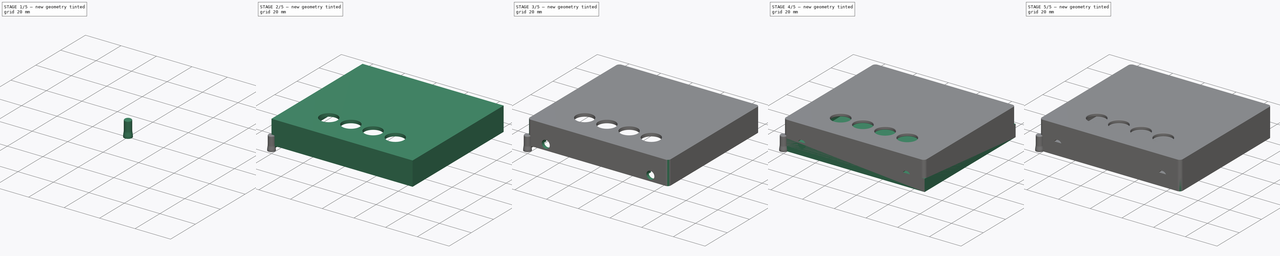
[diagram: build sequence overview — one tinted view per stage of 5, left to right]
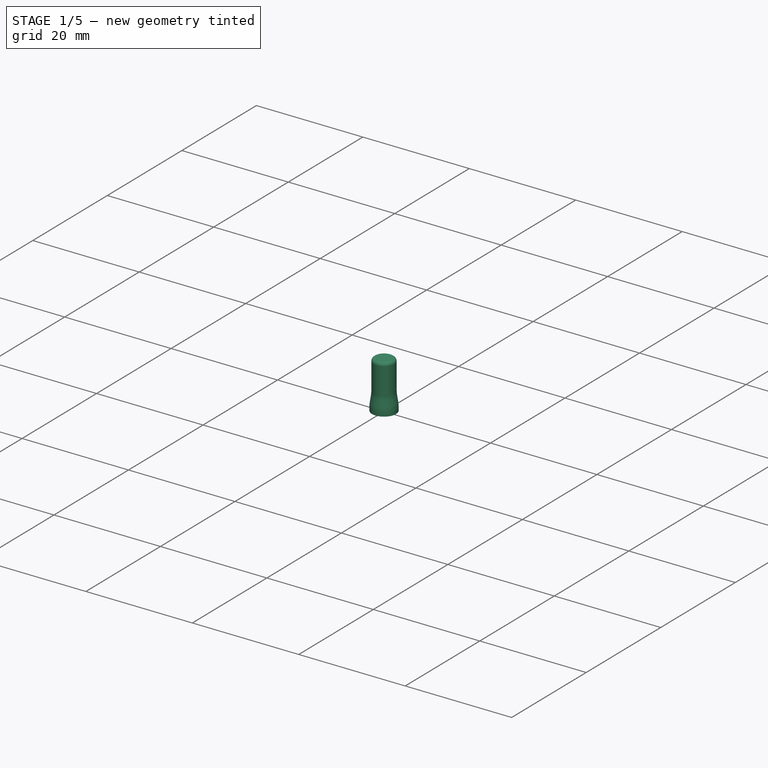
[diagram: stage 1 of 5 — iso view after this stage's code; geometry added in this stage tinted green]
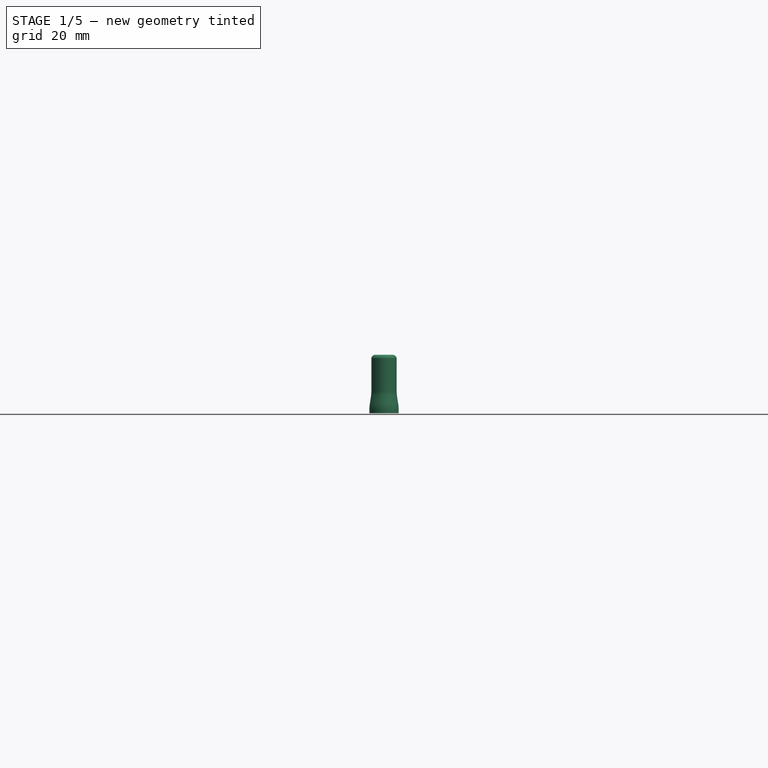
[diagram: stage 1 of 5 — front view after this stage's code; geometry added in this stage tinted green]
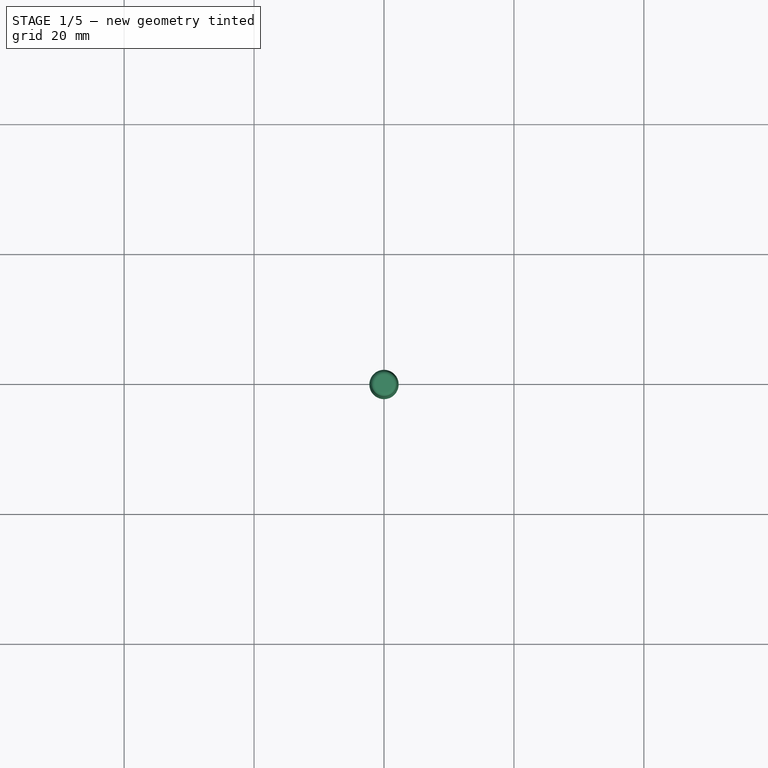
[diagram: stage 1 of 5 — top view after this stage's code; geometry added in this stage tinted green]
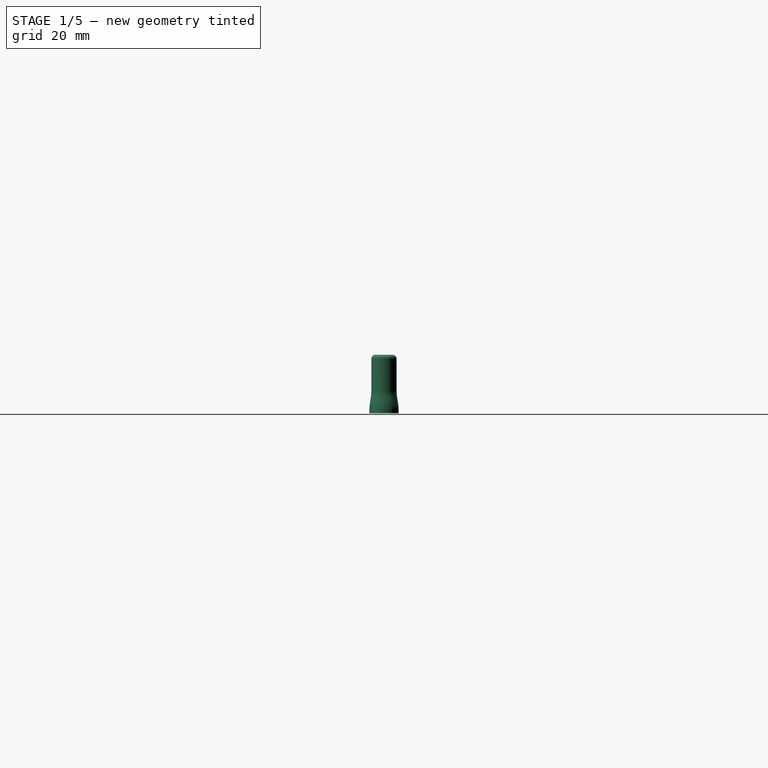
[diagram: stage 1 of 5 — right view after this stage's code; geometry added in this stage tinted green]
FCSTD DOCUMENT  (FreeCAD 1.0R39319 (Git))
Label: C1094
License: All rights reserved
LicenseURL: https://en.wikipedia.org/wiki/All_rights_reserved
objects: Sketcher::SketchObject×16, PartDesign::Pad×11, PartDesign::Fillet×5, PartDesign::Pocket×5, PartDesign::Body×4, PartDesign::Chamfer×3, PartDesign::AdditiveLoft×1
note: 111 computed .brp shape members not serialized (recipe doc carries the construction recipe); baked Part::Feature solids carry a one-line shape summary decoded from their .brp

FEATURE [PartDesign::Body] Body002  label="C1096"
  AllowCompound = false
  Group = -> [Sketch012,Pad007,Sketch013,Pad008]
  Origin = -> Origin002
  Placement = pos=(11.5,-3,8.1) rot=(0,0,1;0rad)
  Tip = -> Pad008
FEATURE [Sketcher::SketchObject] Sketch014
  ArcFitTolerance = 1e-06
  AttachmentSupport = -> [XY_Plane003]
  FullyConstrained = true
  MakeInternals = false
  MapMode = 5
  sketch-geometry (1):
    g0: Circle CenterX=0 CenterY=0 CenterZ=0 NormalX=0 NormalY=0 NormalZ=1 AngleXU=0 Radius=1.95
  constraints (2):
    c: Coincident(g0,g-1)
    c: Diameter(g0) = 3.9
FEATURE [PartDesign::Pad] Pad009
  Direction = (0,0,1)
  Length = 6
  Length2 = 10
  Profile = -> Sketch014
  ReferenceAxis = -> Sketch014 [N_Axis]
  Refine = true
  Suppressed = false
  Type = 0
FEATURE [Sketcher::SketchObject] Sketch015
  ArcFitTolerance = 1e-06
  AttachmentOffset = pos=(0,0,2) rot=(0,0,1;0rad)
  AttachmentSupport = -> [Pad009]
  FullyConstrained = true
  MakeInternals = false
  MapMode = 5
  Placement = pos=(0,0,-2) rot=(1,0,0;3.14159rad)
  sketch-geometry (1):
    g0: Circle CenterX=0 CenterY=0 CenterZ=0 NormalX=0 NormalY=0 NormalZ=1 AngleXU=0 Radius=2.25
  constraints (2):
    c: Coincident(g0,g-1)
    c: Diameter(g0) = 4.5
FEATURE [PartDesign::AdditiveLoft] AdditiveLoft
  BaseFeature = -> Pad009
  Closed = false
  Profile = -> Pad009 [Edge2]
  Refine = true
  Ruled = false
  Sections = -> [Sketch015]
  Suppressed = false
FEATURE [PartDesign::Pad] Pad010
  BaseFeature = -> AdditiveLoft
  Direction = (0,0,-1)
  Length = 1
  Length2 = 10
  Profile = -> Sketch015
  ReferenceAxis = -> Sketch015 [N_Axis]
  Refine = true
  Suppressed = false
  Type = 0
FEATURE [PartDesign::Fillet] Fillet003
  Base = -> Pad010 [Edge5,Edge2]
  BaseFeature = -> Pad010
  Radius = 5
  Refine = true
  SupportTransform = false
  Suppressed = false
  UseAllEdges = false
FEATURE [PartDesign::Fillet] Fillet004
  Base = -> Fillet003 [Edge3]
  BaseFeature = -> Fillet003
  Radius = 0.6
  Refine = true
  SupportTransform = false
  Suppressed = false
  UseAllEdges = false
FEATURE [PartDesign::Body] Body003  label="C1097"
  AllowCompound = false
  Group = -> [Sketch014,Pad009,Sketch015,AdditiveLoft,Pad010,Fillet003,Fillet004]
  Origin = -> Origin003
  Tip = -> Fillet004
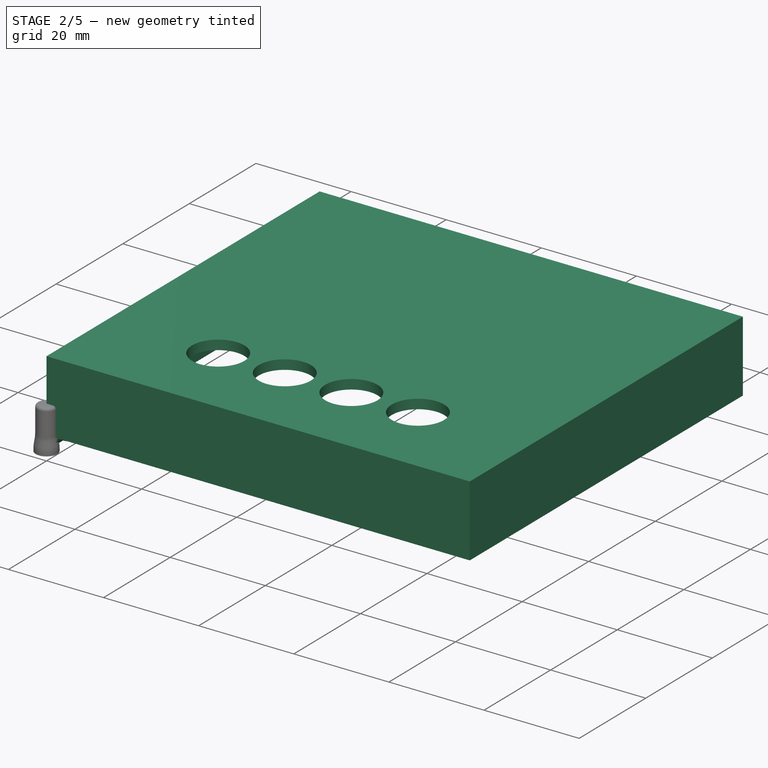
[diagram: stage 2 of 5 — iso view after this stage's code; geometry added in this stage tinted green]
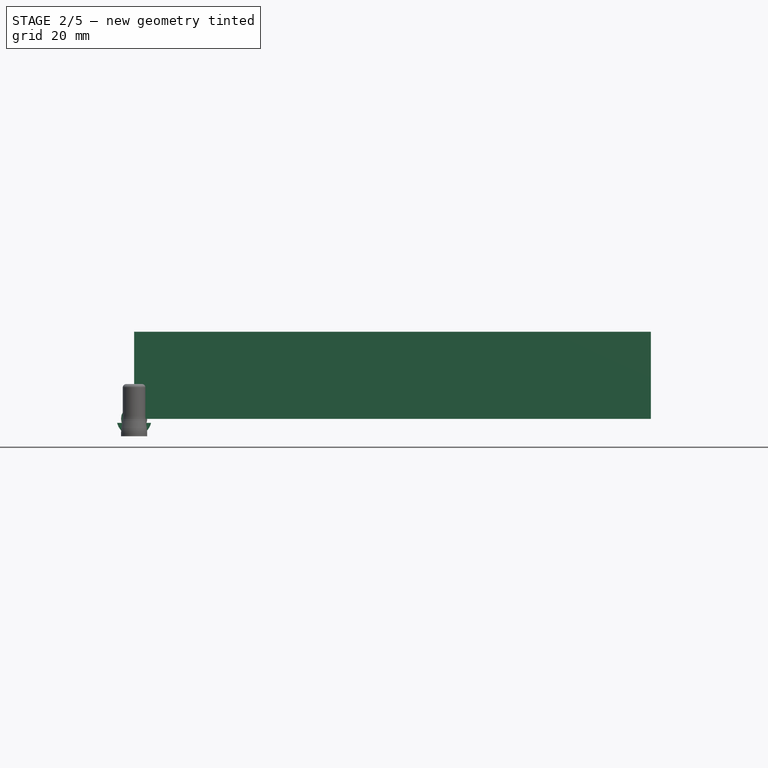
[diagram: stage 2 of 5 — front view after this stage's code; geometry added in this stage tinted green]
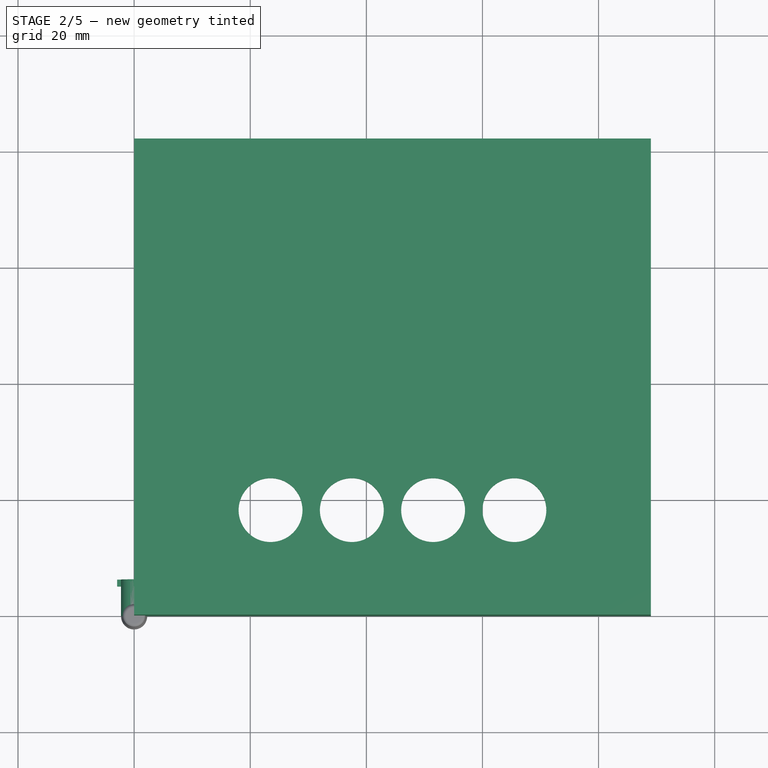
[diagram: stage 2 of 5 — top view after this stage's code; geometry added in this stage tinted green]
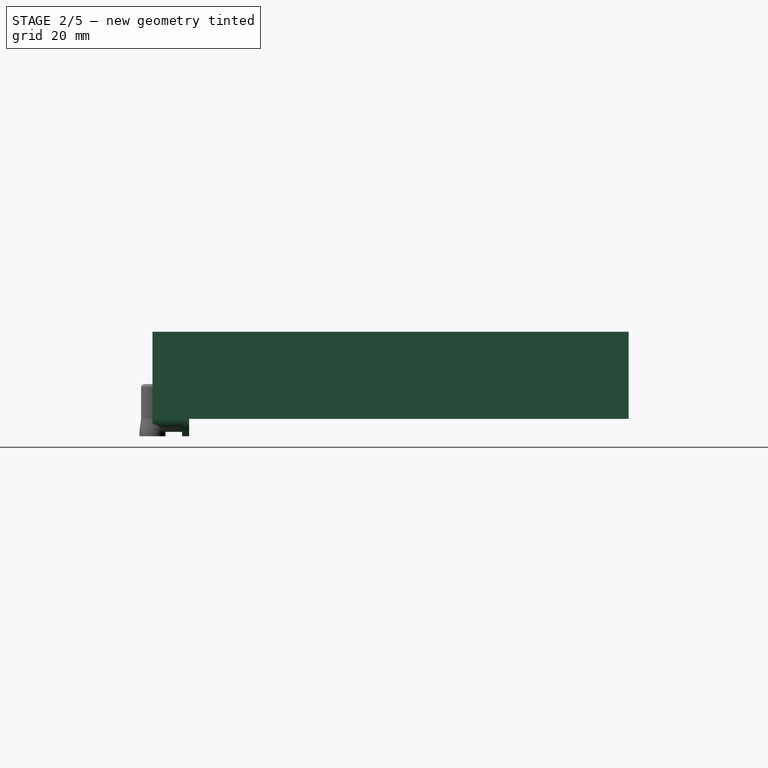
[diagram: stage 2 of 5 — right view after this stage's code; geometry added in this stage tinted green]
FEATURE [Sketcher::SketchObject] Sketch005
  ArcFitTolerance = 1e-06
  AttachmentSupport = -> [XY_Plane001]
  FullyConstrained = true
  MakeInternals = false
  MapMode = 5
  sketch-geometry (11):
    g0: LineSegment StartX=0 StartY=0 StartZ=0 EndX=89 EndY=0 EndZ=0
    g1: LineSegment StartX=89 StartY=0 StartZ=0 EndX=89 EndY=82 EndZ=0
    g2: LineSegment StartX=89 StartY=82 StartZ=0 EndX=0 EndY=82 EndZ=0
    g3: LineSegment StartX=0 StartY=82 StartZ=0 EndX=0 EndY=0 EndZ=0
    g4: LineSegment StartX=4 StartY=78 StartZ=0 EndX=4 EndY=4 EndZ=0
    g5: LineSegment StartX=4 StartY=4 StartZ=0 EndX=85 EndY=4 EndZ=0
    g6: LineSegment StartX=85 StartY=4 StartZ=0 EndX=85 EndY=78 EndZ=0
    g7: LineSegment StartX=85 StartY=78 StartZ=0 EndX=4 EndY=78 EndZ=0
    g8: LineSegment [constr] StartX=0 StartY=82 StartZ=0 EndX=4 EndY=78 EndZ=0
    g9: LineSegment [constr] StartX=4 StartY=4 StartZ=0 EndX=0 EndY=0 EndZ=0
    g10: LineSegment [constr] StartX=85 StartY=4 StartZ=0 EndX=89 EndY=0 EndZ=0
  constraints (29):
    c: Coincident(g0,g1)
    c: Coincident(g1,g2)
    c: Coincident(g2,g3)
    c: Coincident(g3,g0)
    c: Horizontal(g0)
    c: Horizontal(g2)
    c: Vertical(g1)
    c: Vertical(g3)
    c: Coincident(g0,g-1)
    c: DistanceX(g2,g2) = 89
    c: DistanceY(g3,g3) = 82
    c: Coincident(g4,g5)
    c: Coincident(g5,g6)
    c: Coincident(g6,g7)
    c: Coincident(g7,g4)
    c: Vertical(g4)
    c: Vertical(g6)
    c: Horizontal(g5)
    c: Horizontal(g7)
    c: Coincident(g8,g2)
    c: Coincident(g8,g4)
    c: Coincident(g9,g4)
    c: Coincident(g9,g0)
    c: Coincident(g10,g5)
    c: Coincident(g10,g0)
    c: Equal(g10,g9)
    c: Equal(g9,g8)
    c: DistanceX(g9,g9) = 4
    c: DistanceY(g9,g9) = 4
FEATURE [PartDesign::Pad] Pad005
  Direction = (0,0,1)
  Length = 13
  Length2 = 10
  Profile = -> Sketch005
  ReferenceAxis = -> Sketch005 [N_Axis]
  Refine = true
  Suppressed = false
  Type = 0
FEATURE [Sketcher::SketchObject] Sketch006
  ArcFitTolerance = 1e-06
  AttachmentSupport = -> [Pad005]
  ExternalGeometry = -> [Pad005]
  FullyConstrained = true
  MakeInternals = false
  MapMode = 5
  Placement = pos=(0,0,13) rot=(0,0,1;0rad)
  sketch-geometry (13):
    g0: LineSegment StartX=0 StartY=0 StartZ=0 EndX=89 EndY=0 EndZ=0
    g1: LineSegment StartX=89 StartY=0 StartZ=0 EndX=89 EndY=82 EndZ=0
    g2: LineSegment StartX=89 StartY=82 StartZ=0 EndX=0 EndY=82 EndZ=0
    g3: LineSegment StartX=0 StartY=82 StartZ=0 EndX=0 EndY=0 EndZ=0
    g4: Circle CenterX=23.5 CenterY=18 CenterZ=0 NormalX=0 NormalY=0 NormalZ=1 AngleXU=0 Radius=5.5
    g5: Circle CenterX=37.5 CenterY=18 CenterZ=0 NormalX=0 NormalY=0 NormalZ=1 AngleXU=0 Radius=5.5
    g6: Circle CenterX=51.5 CenterY=18 CenterZ=0 NormalX=0 NormalY=0 NormalZ=1 AngleXU=0 Radius=5.5
    g7: Circle CenterX=65.5 CenterY=18 CenterZ=0 NormalX=0 NormalY=0 NormalZ=1 AngleXU=0 Radius=5.5
    g8: LineSegment [constr] StartX=4 StartY=4 StartZ=0 EndX=23.5 EndY=18 EndZ=0
    g9: LineSegment [constr] StartX=65.5 StartY=18 StartZ=0 EndX=85 EndY=4 EndZ=0
    g10: LineSegment [constr] StartX=23.5 StartY=18 StartZ=0 EndX=37.5 EndY=18 EndZ=0
    g11: LineSegment [constr] StartX=37.5 StartY=18 StartZ=0 EndX=51.5 EndY=18 EndZ=0
    g12: LineSegment [constr] StartX=51.5 StartY=18 StartZ=0 EndX=65.5 EndY=18 EndZ=0
  constraints (32):
    c: Coincident(g0,g1)
    c: Coincident(g1,g2)
    c: Coincident(g2,g3)
    c: Coincident(g3,g0)
    c: Horizontal(g0)
    c: Horizontal(g2)
    c: Vertical(g1)
    c: Vertical(g3)
    c: Coincident(g0,g-1)
    c: Coincident(g1,g-3)
    c: Diameter(g7) = 11
    c: Equal(g7,g6)
    c: Equal(g6,g5)
    c: Equal(g5,g4)
    c: Coincident(g8,g-4)
    c: Coincident(g8,g4)
    c: Coincident(g9,g-4)
    c: Coincident(g10,g4)
    c: Coincident(g10,g5)
    c: Coincident(g11,g5)
    c: Coincident(g11,g6)
    c: Coincident(g12,g6)
    c: Coincident(g12,g7)
    c: Equal(g12,g11)
    c: Equal(g11,g10)
    c: Horizontal(g10)
    c: Horizontal(g11)
    c: Horizontal(g12)
    c: Coincident(g7,g9)
    c: DistanceX(g10,g10) = 14
    c: DistanceY(g9,g9) = 14
    c: Equal(g9,g8)
FEATURE [PartDesign::Pad] Pad006
  BaseFeature = -> Pad005
  Direction = (0,0,1)
  Length = 2
  Length2 = 10
  Profile = -> Sketch006
  ReferenceAxis = -> Sketch006 [N_Axis]
  Refine = true
  Suppressed = false
  Type = 0
FEATURE [Sketcher::SketchObject] Sketch007
  ArcFitTolerance = 1e-06
  AttachmentSupport = -> [Pad006]
  ExternalGeometry = -> [Pad006]
  FullyConstrained = true
  MakeInternals = false
  MapMode = 5
  Placement = pos=(0,82,0) rot=(0,0.707107,0.707107;3.14159rad)
  expr: Constraints[22] = 17.775 + 1.5
  expr: Constraints[24] = 19.05 mm + 0.5 mm
  sketch-geometry (16):
    g0: LineSegment StartX=-18.525 StartY=0 StartZ=0 EndX=-18.525 EndY=3.5 EndZ=0
    g1: LineSegment StartX=-18.525 StartY=3.5 StartZ=0 EndX=-28.025 EndY=3.5 EndZ=0
    g2: LineSegment StartX=-28.025 StartY=3.5 StartZ=0 EndX=-28.025 EndY=0 EndZ=0
    g3: LineSegment StartX=-28.025 StartY=0 StartZ=0 EndX=-18.525 EndY=0 EndZ=0
    g4: LineSegment StartX=-75 StartY=0 StartZ=0 EndX=-55.9 EndY=0 EndZ=0
    g5: LineSegment StartX=-55.9 StartY=0 StartZ=0 EndX=-55.9 EndY=1 EndZ=0
    g6: LineSegment StartX=-55.9 StartY=1 StartZ=0 EndX=-75 EndY=1 EndZ=0
    g7: LineSegment StartX=-75 StartY=1 StartZ=0 EndX=-75 EndY=0 EndZ=0
    g8: GeomPoint X=-23.275 Y=0 Z=0
    g9: GeomPoint X=-65.45 Y=0 Z=0
    g10: LineSegment [constr] StartX=-29.275 StartY=0 StartZ=0 EndX=-17.275 EndY=0 EndZ=0
    g11: LineSegment [constr] StartX=-17.275 StartY=0 StartZ=0 EndX=-17.275 EndY=5 EndZ=0
    g12: LineSegment [constr] StartX=-17.275 StartY=5 StartZ=0 EndX=-29.275 EndY=5 EndZ=0
    g13: LineSegment [constr] StartX=-29.275 StartY=5 StartZ=0 EndX=-29.275 EndY=0 EndZ=0
    g14: LineSegment [constr] StartX=-18.525 StartY=3.5 StartZ=0 EndX=-17.275 EndY=5 EndZ=0
    g15: LineSegment [constr] StartX=-28.025 StartY=3.5 StartZ=0 EndX=-29.275 EndY=5 EndZ=0
  constraints (42):
    c: Coincident(g0,g1)
    c: Coincident(g1,g2)
    c: Coincident(g2,g3)
    c: Coincident(g3,g0)
    c: Vertical(g0)
    c: Vertical(g2)
    c: Horizontal(g1)
    c: Horizontal(g3)
    c: PointOnObject(g0,g-1)
    c: Coincident(g4,g5)
    c: Coincident(g5,g6)
    c: Coincident(g6,g7)
    c: Coincident(g7,g4)
    c: Horizontal(g4)
    c: Horizontal(g6)
    c: Vertical(g5)
    c: Vertical(g7)
    c: PointOnObject(g4,g-1)
    c: Distance(g5,g5) = 1
    c: Distance(g2,g2) = 3.5
    c: DistanceX(g1,g1) = 9.5
    c: Symmetric(g3,g3,g8)
    c: DistanceX(g8,g-3) = 19.275
    c: Symmetric(g4,g4,g9)
    c: DistanceX(g-4,g9) = 19.55
    c: DistanceX(g-4,g4) = 10
    c: Coincident(g10,g11)
    c: Coincident(g11,g12)
    c: Coincident(g12,g13)
    c: Coincident(g13,g10)
    c: Horizontal(g10)
    c: Horizontal(g12)
    c: Vertical(g11)
    c: Vertical(g13)
    c: PointOnObject(g10,g-1)
    c: Coincident(g14,g0)
    c: Coincident(g14,g11)
    c: Coincident(g15,g1)
    c: Coincident(g15,g12)
    c: Equal(g15,g14)
    c: DistanceY(g13,g13) = 5
    c: DistanceX(g12,g12) = 12
FEATURE [PartDesign::Pocket] Pocket
  BaseFeature = -> Pad006
  Direction = (0,-1,2e-16)
  Length = 5
  Length2 = 5
  Profile = -> Sketch007
  ReferenceAxis = -> Sketch007 [N_Axis]
  Refine = true
  Suppressed = false
  Type = 2
FEATURE [PartDesign::Body] Body001  label="C1094"
  AllowCompound = false
  Group = -> [Sketch005,Pad005,Sketch006,Pad006,Sketch007,Pocket,Sketch008,Pocket001,Sketch009,Pocket002,Fillet001,Chamfer002,Sketch011,Pocket004,Fillet002]
  Origin = -> Origin001
  Placement = pos=(0,0,4.6) rot=(0,0,1;0rad)
  Tip = -> Fillet002
FEATURE [Sketcher::SketchObject] Sketch012
  ArcFitTolerance = 1e-06
  AttachmentSupport = -> [XZ_Plane002]
  FullyConstrained = true
  MakeInternals = false
  MapMode = 5
  Placement = pos=(0,0,0) rot=(1,0,0;1.5708rad)
  sketch-geometry (1):
    g0: Circle CenterX=0 CenterY=0 CenterZ=0 NormalX=0 NormalY=0 NormalZ=1 AngleXU=0 Radius=2.25
  constraints (2):
    c: Diameter(g0) = 4.5
    c: Coincident(g0,g-1)
FEATURE [PartDesign::Pad] Pad007
  Direction = (0,-1,2e-16)
  Length = 5.1
  Length2 = 10
  Placement = pos=(0,0,0) rot=(1,0,0;1.5708rad)
  Profile = -> Sketch012
  ReferenceAxis = -> Sketch012 [N_Axis]
  Refine = true
  Reversed = true
  Suppressed = false
  Type = 0
FEATURE [Sketcher::SketchObject] Sketch013
  ArcFitTolerance = 1e-06
  AttachmentSupport = -> [Pad007]
  ExternalGeometry = -> [Pad007]
  FullyConstrained = true
  MakeInternals = false
  MapMode = 5
  Placement = pos=(0,5.1,0) rot=(-1,0,0;1.5708rad)
  sketch-geometry (6):
    g0: LineSegment StartX=2.91719 StartY=0.7 StartZ=0 EndX=2.13834 EndY=0.7 EndZ=0
    g1: GeomPoint X=1e-16 Y=0.7 Z=0
    g2: ArcOfCircle CenterX=0 CenterY=0 CenterZ=0 NormalX=0 NormalY=0 NormalZ=1 AngleXU=0 Radius=3 StartAngle=0.235504 EndAngle=2.90609
    g3: ArcOfCircle CenterX=0 CenterY=0 CenterZ=0 NormalX=0 NormalY=0 NormalZ=1 AngleXU=0 Radius=2.25 StartAngle=2.82523 EndAngle=6.59955
    g4: LineSegment StartX=-2.13834 StartY=0.7 StartZ=0 EndX=-2.91719 EndY=0.7 EndZ=0
    g5: LineSegment [constr] StartX=2.13834 StartY=0.7 StartZ=0 EndX=-2.13834 EndY=0.7 EndZ=0
  constraints (15):
    c: Horizontal(g0)
    c: Symmetric(g0,g4,g1)
    c: Distance(g0,g-1) = 0.7
    c: Coincident(g2,g-1)
    c: Coincident(g2,g4)
    c: Coincident(g2,g0)
    c: Radius(g2) = 3
    c: Coincident(g3,g2)
    c: Coincident(g0,g3)
    c: Coincident(g5,g4)
    c: Horizontal(g5)
    c: Coincident(g0,g5)
    c: Horizontal(g4)
    c: Coincident(g3,g4)
    c: PointOnObject(g0,g-3)
FEATURE [PartDesign::Pad] Pad008
  BaseFeature = -> Pad007
  Direction = (0,1,2e-16)
  Length = 1.2
  Length2 = 10
  Placement = pos=(0,0,0) rot=(1,0,0;1.5708rad)
  Profile = -> Sketch013
  ReferenceAxis = -> Sketch013 [N_Axis]
  Refine = true
  Suppressed = false
  Type = 0
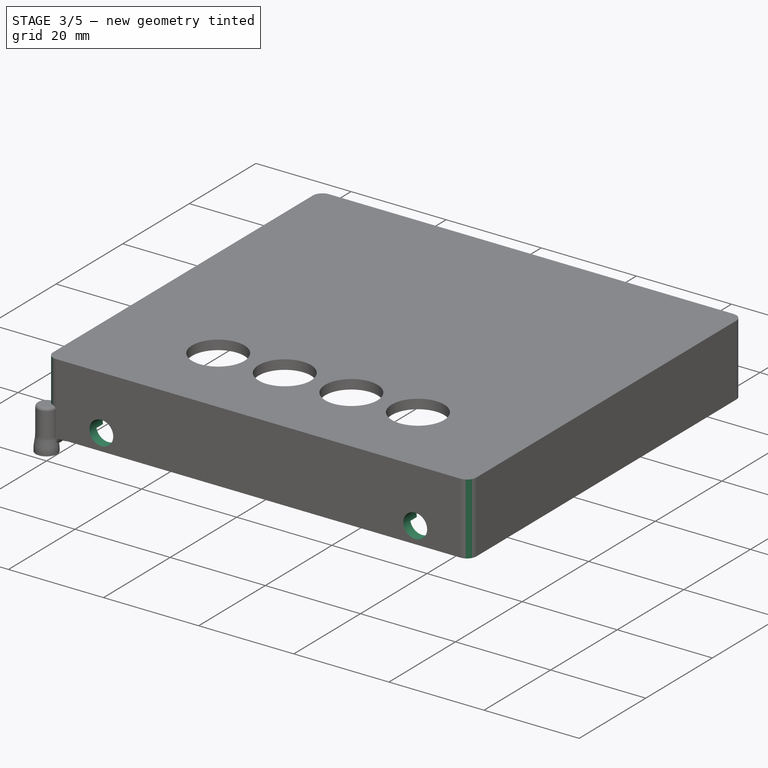
[diagram: stage 3 of 5 — iso view after this stage's code; geometry added in this stage tinted green]
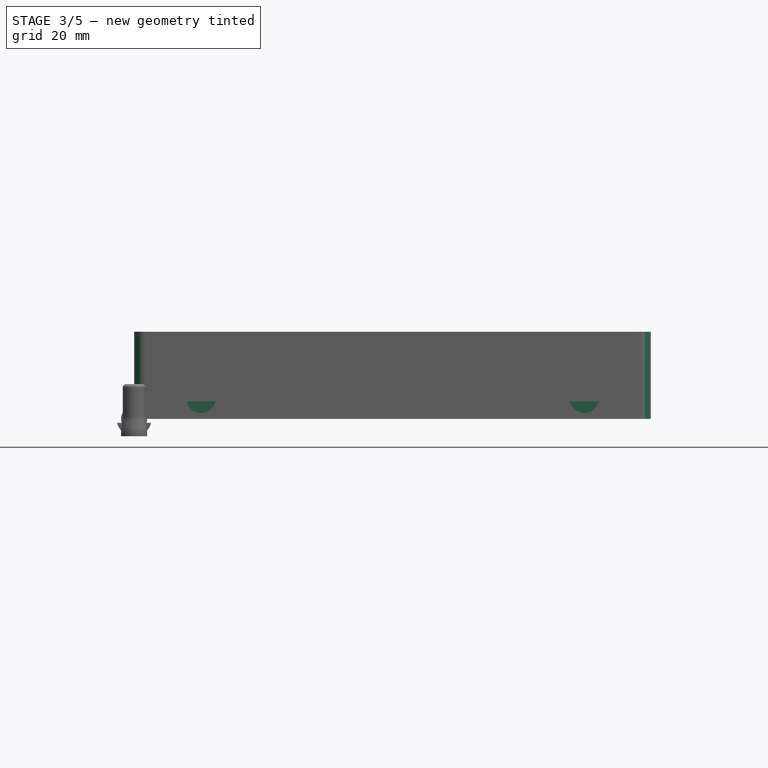
[diagram: stage 3 of 5 — front view after this stage's code; geometry added in this stage tinted green]
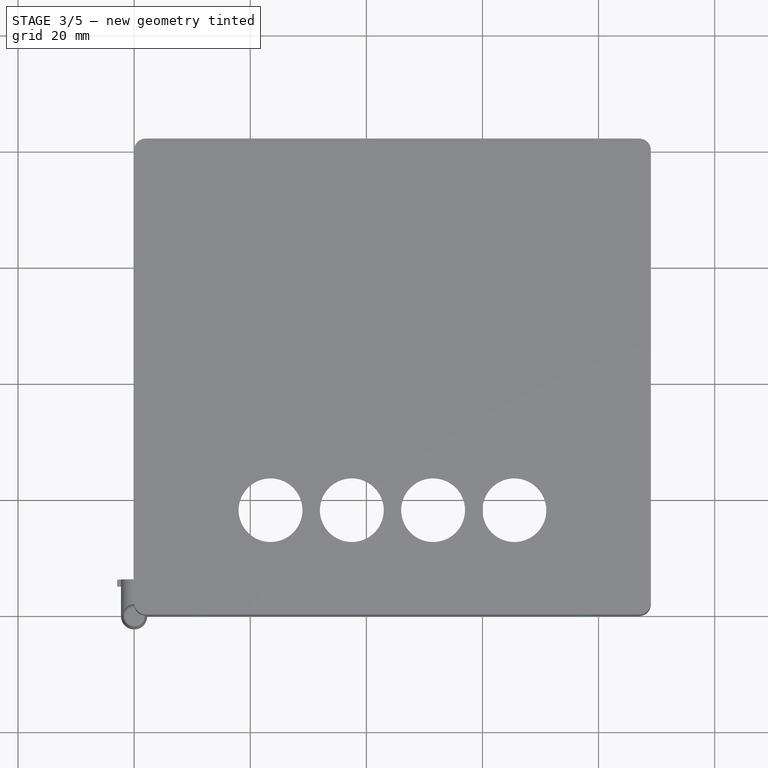
[diagram: stage 3 of 5 — top view after this stage's code; geometry added in this stage tinted green]
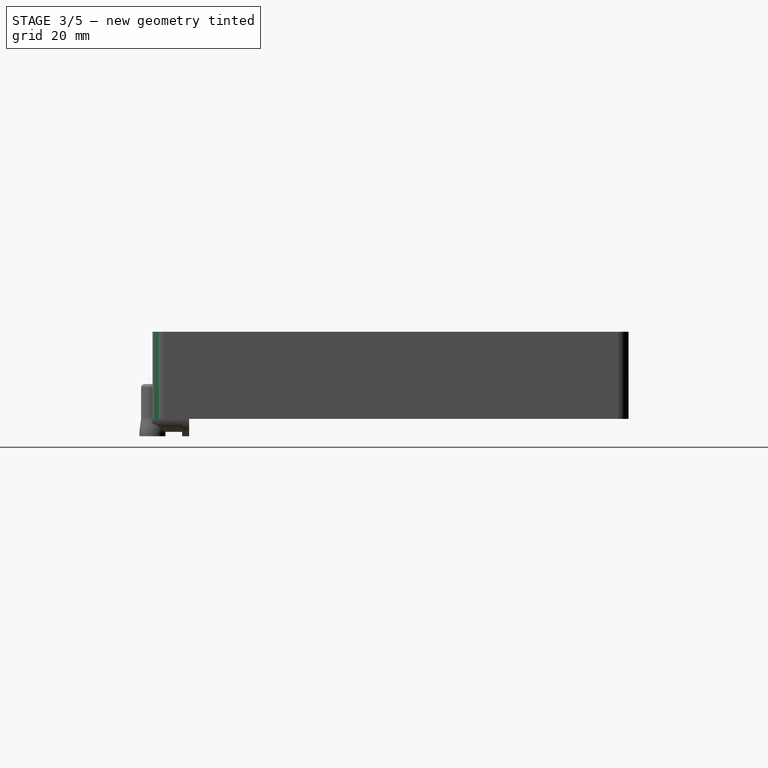
[diagram: stage 3 of 5 — right view after this stage's code; geometry added in this stage tinted green]
FEATURE [Sketcher::SketchObject] Sketch008
  ArcFitTolerance = 1e-06
  AttachmentSupport = -> [Pocket]
  ExternalGeometry = -> [Pocket]
  FullyConstrained = true
  MakeInternals = false
  MapMode = 5
  Placement = pos=(0,0,0) rot=(1,0,0;1.5708rad)
  expr: Constraints[0] = 1.5 mm + 6.025 mm
  expr: Constraints[1] = 0.5 mm + 6.975 mm
  sketch-geometry (3):
    g0: Circle CenterX=11.525 CenterY=3.5 CenterZ=0 NormalX=0 NormalY=0 NormalZ=1 AngleXU=0 Radius=2.5
    g1: Circle CenterX=77.525 CenterY=3.5 CenterZ=0 NormalX=0 NormalY=0 NormalZ=1 AngleXU=0 Radius=2.5
    g2: LineSegment [constr] StartX=77.525 StartY=3.5 StartZ=0 EndX=11.525 EndY=3.5 EndZ=0
  constraints (8):
    c: DistanceX(g-3,g0) = 7.525
    c: DistanceX(g1,g-4) = 7.475
    c: Coincident(g2,g1)
    c: Coincident(g2,g0)
    c: Horizontal(g2)
    c: Equal(g0,g1)
    c: Diameter(g0) = 5
    c: DistanceY(g-3,g0) = 3.5
FEATURE [PartDesign::Pocket] Pocket001
  BaseFeature = -> Pocket
  Direction = (0,1,-2e-16)
  Length = 5
  Length2 = 5
  Profile = -> Sketch008
  ReferenceAxis = -> Sketch008 [N_Axis]
  Refine = true
  Suppressed = false
  Type = 2
FEATURE [Sketcher::SketchObject] Sketch009
  ArcFitTolerance = 1e-06
  AttachmentSupport = -> [Pocket001]
  ExternalGeometry = -> [Pocket001]
  FullyConstrained = true
  MakeInternals = false
  MapMode = 5
  Placement = pos=(0,0,0) rot=(1,0,0;3.14159rad)
  sketch-geometry (23):
    g0: LineSegment StartX=4 StartY=-4 StartZ=0 EndX=85 EndY=-4 EndZ=0
    g1: LineSegment StartX=85 StartY=-4 StartZ=0 EndX=85 EndY=-78 EndZ=0
    g2: LineSegment StartX=85 StartY=-78 StartZ=0 EndX=75 EndY=-78 EndZ=0
    g3: LineSegment StartX=75 StartY=-78 StartZ=0 EndX=75 EndY=-79.95 EndZ=0
    g4: LineSegment StartX=75 StartY=-79.95 StartZ=0 EndX=86.95 EndY=-79.95 EndZ=0
    g5: LineSegment StartX=86.95 StartY=-79.95 StartZ=0 EndX=86.95 EndY=-2.05 EndZ=0
    g6: LineSegment StartX=86.95 StartY=-2.05 StartZ=0 EndX=2.05 EndY=-2.05 EndZ=0
    g7: LineSegment StartX=2.05 StartY=-2.05 StartZ=0 EndX=2.05 EndY=-79.95 EndZ=0
    g8: LineSegment StartX=2.05 StartY=-79.95 StartZ=0 EndX=14 EndY=-79.95 EndZ=0
    g9: LineSegment StartX=14 StartY=-79.95 StartZ=0 EndX=14 EndY=-78 EndZ=0
    g10: LineSegment StartX=14 StartY=-78 StartZ=0 EndX=4 EndY=-78 EndZ=0
    g11: LineSegment StartX=4 StartY=-78 StartZ=0 EndX=4 EndY=-4 EndZ=0
    g12: LineSegment StartX=37 StartY=-78 StartZ=0 EndX=37 EndY=-79.95 EndZ=0
    g13: LineSegment StartX=37 StartY=-79.95 StartZ=0 EndX=52 EndY=-79.95 EndZ=0
    g14: LineSegment StartX=52 StartY=-79.95 StartZ=0 EndX=52 EndY=-78 EndZ=0
    g15: LineSegment StartX=52 StartY=-78 StartZ=0 EndX=37 EndY=-78 EndZ=0
    g16: LineSegment [constr] StartX=14 StartY=-78 StartZ=0 EndX=37 EndY=-78 EndZ=0
    g17: LineSegment [constr] StartX=37 StartY=-79.95 StartZ=0 EndX=14 EndY=-79.95 EndZ=0
    g18: LineSegment [constr] StartX=52 StartY=-79.95 StartZ=0 EndX=75 EndY=-79.95 EndZ=0
    g19: LineSegment [constr] StartX=75 StartY=-78 StartZ=0 EndX=52 EndY=-78 EndZ=0
    g20: LineSegment [constr] StartX=85 StartY=-4 StartZ=0 EndX=86.95 EndY=-2.05 EndZ=0
    g21: LineSegment [constr] StartX=4 StartY=-4 StartZ=0 EndX=2.05 EndY=-2.05 EndZ=0
    g22: LineSegment [constr] StartX=85 StartY=-78 StartZ=0 EndX=86.95 EndY=-79.95 EndZ=0
  constraints (59):
    c: Coincident(g0,g-4)
    c: Coincident(g1,g0)
    c: Coincident(g2,g1)
    c: Coincident(g3,g2)
    c: Vertical(g3)
    c: Coincident(g4,g3)
    c: Horizontal(g4)
    c: Coincident(g5,g4)
    c: Vertical(g5)
    c: Coincident(g6,g5)
    c: Horizontal(g6)
    c: Coincident(g7,g6)
    c: Vertical(g7)
    c: Coincident(g8,g7)
    c: Coincident(g9,g8)
    c: Vertical(g9)
    c: Coincident(g10,g9)
    c: Coincident(g11,g10)
    c: Coincident(g11,g0)
    c: Vertical(g11)
    c: Coincident(g0,g-5)
    c: Coincident(g1,g-3)
    c: Distance(g3,g3) = 1.95
    c: Horizontal(g2)
    c: DistanceX(g2,g2) = 10
    c: Equal(g2,g10)
    c: Horizontal(g10)
    c: Horizontal(g8)
    c: Coincident(g12,g13)
    c: Coincident(g13,g14)
    c: Coincident(g14,g15)
    c: Coincident(g15,g12)
    c: Vertical(g12)
    c: Vertical(g14)
    c: Horizontal(g13)
    c: Horizontal(g15)
    c: DistanceX(g15,g15) = 15
    c: Coincident(g16,g9)
    c: Coincident(g16,g12)
    c: Coincident(g17,g12)
    c: Coincident(g17,g8)
    c: Coincident(g18,g13)
    c: Coincident(g18,g3)
    c: Coincident(g19,g2)
    c: Coincident(g19,g14)
    c: Horizontal(g19)
    c: Horizontal(g16)
    c: Horizontal(g18)
    c: Horizontal(g17)
    c: Equal(g19,g16)
    c: Coincident(g20,g0)
    c: Coincident(g20,g5)
    c: Coincident(g21,g0)
    c: Coincident(g21,g6)
    c: Coincident(g22,g1)
    c: Coincident(g22,g4)
    c: Equal(g20,g21)
    c: Equal(g22,g20)
    c: DistanceX(g22,g22) = 1.95
FEATURE [PartDesign::Pocket] Pocket002
  BaseFeature = -> Pocket001
  Direction = (0,0,1)
  Length = 3
  Length2 = 5
  Profile = -> Sketch009
  ReferenceAxis = -> Sketch009 [N_Axis]
  Refine = true
  Suppressed = false
  Type = 0
FEATURE [PartDesign::Fillet] Fillet001
  Base = -> Pocket002 [Edge15,Edge61,Edge17,Edge63]
  BaseFeature = -> Pocket002
  Radius = 2
  Refine = true
  SupportTransform = false
  Suppressed = false
  UseAllEdges = false
FEATURE [PartDesign::Chamfer] Chamfer002
  Angle = 45
  Base = -> Fillet001 [Edge11,Edge9,Edge17,Edge15,Edge13]
  BaseFeature = -> Fillet001
  ChamferType = 0
  FlipDirection = false
  Refine = true
  Size = 0.707
  Size2 = 1
  SupportTransform = false
  Suppressed = false
  UseAllEdges = false
FEATURE [PartDesign::Body] Body  label="C1095"
  AllowCompound = false
  Group = -> [Sketch,Pad,Sketch001,Pad001,Sketch002,Pad002,Sketch003,Pad003,Fillet,Chamfer,Sketch004,Pad004,Chamfer001,Sketch010,Pocket003]
  Origin = -> Origin
  Tip = -> Pocket003
FEATURE [Sketcher::SketchObject] Sketch011
  ArcFitTolerance = 1e-06
  AttachmentSupport = -> [Chamfer002]
  ExternalGeometry = -> [Chamfer002]
  FullyConstrained = true
  MakeInternals = false
  MapMode = 5
  Placement = pos=(0,82,0) rot=(0,0.707107,0.707107;3.14159rad)
  sketch-geometry (6):
    g0: LineSegment StartX=-29.275 StartY=0 StartZ=0 EndX=-17.275 EndY=0 EndZ=0
    g1: LineSegment StartX=-17.275 StartY=0 StartZ=0 EndX=-17.275 EndY=5 EndZ=0
    g2: LineSegment StartX=-17.275 StartY=5 StartZ=0 EndX=-29.275 EndY=5 EndZ=0
    g3: LineSegment StartX=-29.275 StartY=5 StartZ=0 EndX=-29.275 EndY=0 EndZ=0
    g4: LineSegment [constr] StartX=-28.025 StartY=3.5 StartZ=0 EndX=-29.275 EndY=5 EndZ=0
    g5: LineSegment [constr] StartX=-18.525 StartY=3.5 StartZ=0 EndX=-17.275 EndY=5 EndZ=0
  constraints (16):
    c: Coincident(g0,g1)
    c: Coincident(g1,g2)
    c: Coincident(g2,g3)
    c: Coincident(g3,g0)
    c: Horizontal(g0)
    c: Horizontal(g2)
    c: Vertical(g1)
    c: Vertical(g3)
    c: PointOnObject(g0,g-3)
    c: Coincident(g4,g-4)
    c: Coincident(g4,g2)
    c: Coincident(g5,g-4)
    c: Coincident(g5,g1)
    c: DistanceX(g2,g2) = 12
    c: DistanceY(g3,g3) = 5
    c: Equal(g4,g5)
FEATURE [PartDesign::Pocket] Pocket004
  BaseFeature = -> Chamfer002
  Direction = (0,-1,2e-16)
  Length = 2
  Length2 = 5
  Profile = -> Sketch011
  ReferenceAxis = -> Sketch011 [N_Axis]
  Refine = true
  Suppressed = false
  Type = 0
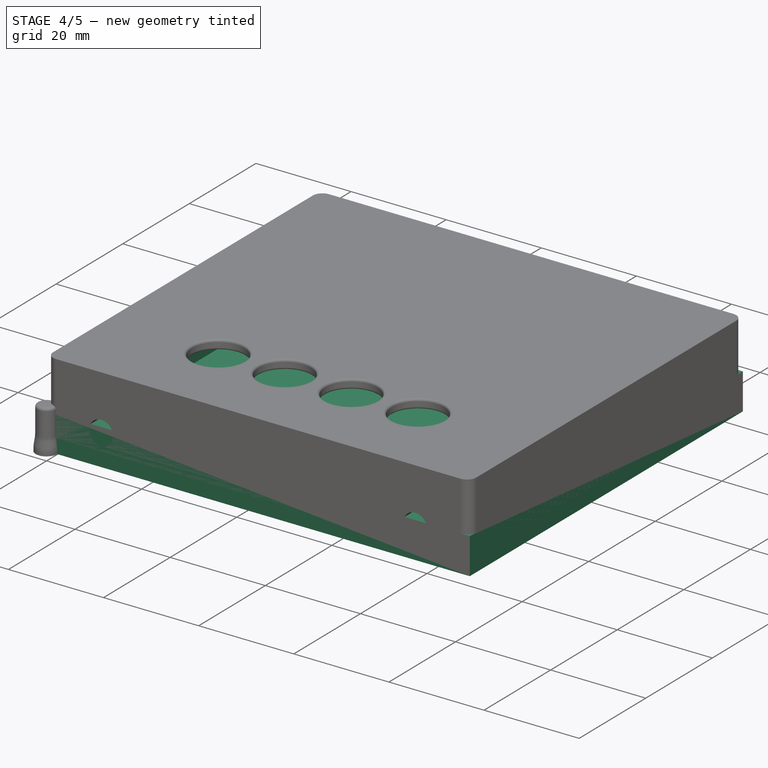
[diagram: stage 4 of 5 — iso view after this stage's code; geometry added in this stage tinted green]
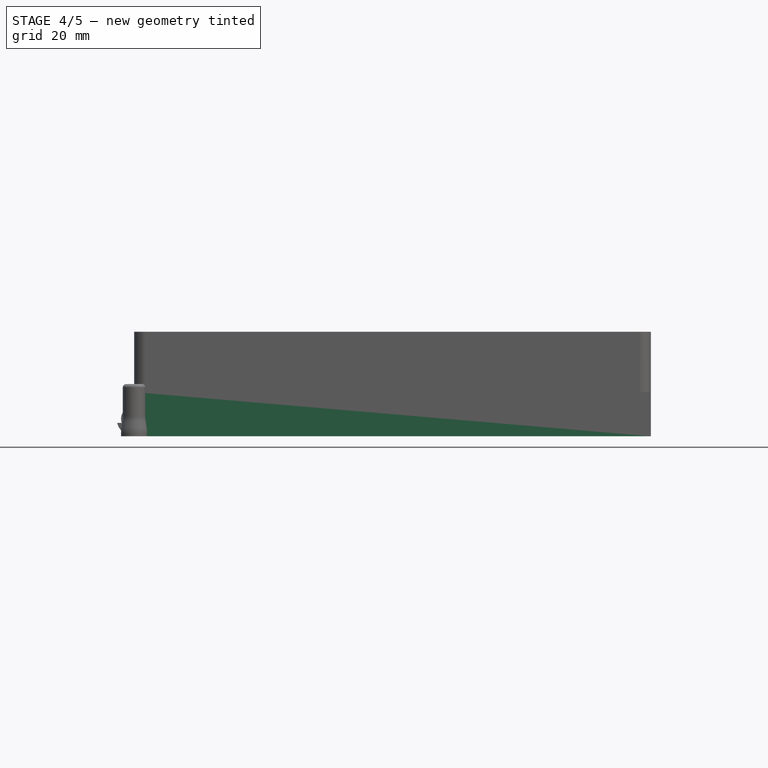
[diagram: stage 4 of 5 — front view after this stage's code; geometry added in this stage tinted green]
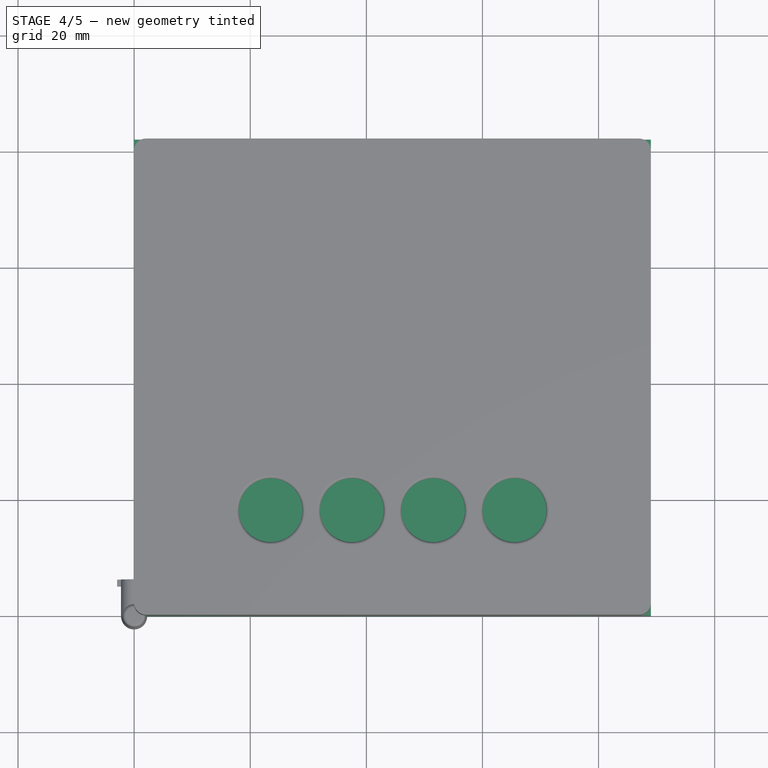
[diagram: stage 4 of 5 — top view after this stage's code; geometry added in this stage tinted green]
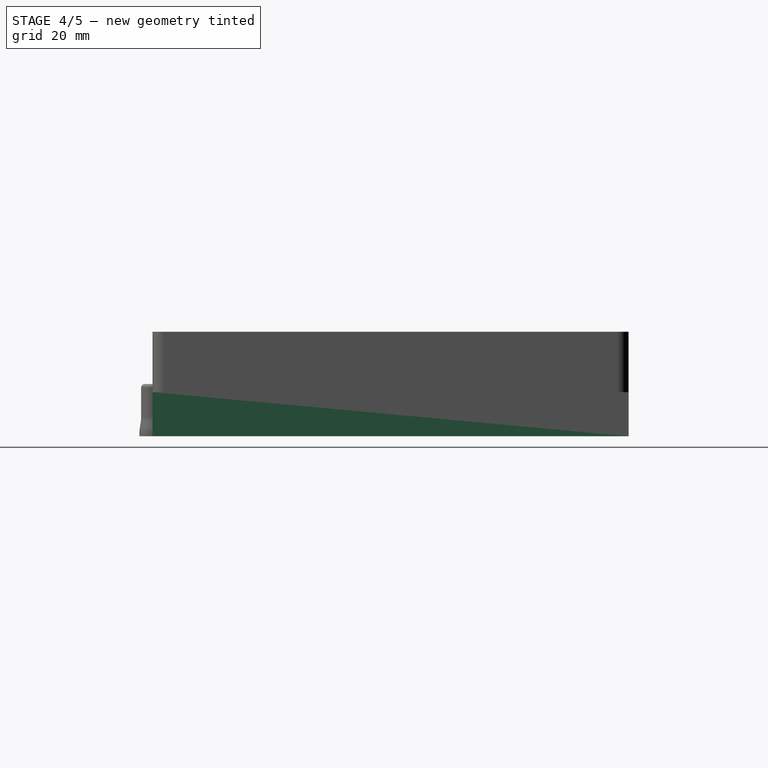
[diagram: stage 4 of 5 — right view after this stage's code; geometry added in this stage tinted green]
FEATURE [Sketcher::SketchObject] Sketch
  ArcFitTolerance = 1e-06
  AttachmentSupport = -> [XY_Plane]
  FullyConstrained = true
  MakeInternals = false
  MapMode = 5
  sketch-geometry (25):
    g0: LineSegment StartX=0 StartY=0 StartZ=0 EndX=89 EndY=0 EndZ=0
    g1: LineSegment StartX=89 StartY=0 StartZ=0 EndX=89 EndY=82 EndZ=0
    g2: LineSegment StartX=89 StartY=82 StartZ=0 EndX=0 EndY=82 EndZ=0
    g3: LineSegment StartX=0 StartY=82 StartZ=0 EndX=0 EndY=0 EndZ=0
    g4: LineSegment [constr] StartX=5.5 StartY=77 StartZ=0 EndX=5.5 EndY=5 EndZ=0
    g5: LineSegment [constr] StartX=5.5 StartY=5 StartZ=0 EndX=84.5 EndY=5 EndZ=0
    g6: LineSegment [constr] StartX=84.5 StartY=5 StartZ=0 EndX=84.5 EndY=77 EndZ=0
    g7: LineSegment [constr] StartX=84.5 StartY=77 StartZ=0 EndX=5.5 EndY=77 EndZ=0
    g8: Circle [constr] CenterX=9.5 CenterY=73 CenterZ=0 NormalX=0 NormalY=0 NormalZ=1 AngleXU=0 Radius=1.25
    g9: LineSegment [constr] StartX=5.5 StartY=77 StartZ=0 EndX=9.5 EndY=73 EndZ=0
    g10: Circle [constr] CenterX=11.5 CenterY=21 CenterZ=0 NormalX=0 NormalY=0 NormalZ=1 AngleXU=0 Radius=1.25
    g11: LineSegment [constr] StartX=11.5 StartY=21 StartZ=0 EndX=5.5 EndY=5 EndZ=0
    g12: Circle [constr] CenterX=78.5 CenterY=21 CenterZ=0 NormalX=0 NormalY=0 NormalZ=1 AngleXU=0 Radius=1.25
    g13: LineSegment [constr] StartX=78.5 StartY=21 StartZ=0 EndX=84.5 EndY=5 EndZ=0
    g14: LineSegment [constr] StartX=78.5 StartY=21 StartZ=0 EndX=11.5 EndY=21 EndZ=0
    g15: LineSegment StartX=4 StartY=4 StartZ=0 EndX=85 EndY=4 EndZ=0
    g16: LineSegment StartX=85 StartY=4 StartZ=0 EndX=85 EndY=78 EndZ=0
    g17: LineSegment StartX=85 StartY=78 StartZ=0 EndX=4 EndY=78 EndZ=0
    g18: LineSegment StartX=4 StartY=78 StartZ=0 EndX=4 EndY=4 EndZ=0
    g19: LineSegment [constr] StartX=5.5 StartY=5 StartZ=0 EndX=4 EndY=4 EndZ=0
    g20: LineSegment [constr] StartX=5.5 StartY=77 StartZ=0 EndX=4 EndY=78 EndZ=0
    g21: LineSegment [constr] StartX=84.5 StartY=5 StartZ=0 EndX=85 EndY=4 EndZ=0
    g22: LineSegment [constr] StartX=4 StartY=4 StartZ=0 EndX=0 EndY=0 EndZ=0
    g23: LineSegment [constr] StartX=85 StartY=4 StartZ=0 EndX=89 EndY=0 EndZ=0
    g24: LineSegment [constr] StartX=4 StartY=78 StartZ=0 EndX=0 EndY=82 EndZ=0
  constraints (64):
    c: Coincident(g0,g1)
    c: Coincident(g1,g2)
    c: Coincident(g2,g3)
    c: Coincident(g3,g0)
    c: Horizontal(g0)
    c: Horizontal(g2)
    c: Vertical(g1)
    c: Vertical(g3)
    c: Coincident(g0,g-1)
    c: Coincident(g4,g5)
    c: Coincident(g5,g6)
    c: Coincident(g6,g7)
    c: Coincident(g7,g4)
    c: Vertical(g4)
    c: Vertical(g6)
    c: Horizontal(g5)
    c: Horizontal(g7)
    c: DistanceX(g7,g7) = 79
    c: DistanceY(g4,g4) = 72
    c: Coincident(g9,g4)
    c: Coincident(g9,g8)
    c: DistanceX(g9,g9) = 4
    c: DistanceY(g9,g9) = 4
    c: Diameter(g8) = 2.5
    c: Coincident(g11,g10)
    c: Coincident(g11,g4)
    c: DistanceX(g11,g11) = 6
    c: DistanceY(g11,g11) = 16
    c: Coincident(g13,g12)
    c: Coincident(g13,g5)
    c: Coincident(g14,g12)
    c: Coincident(g14,g10)
    c: Horizontal(g14)
    c: Equal(g13,g11)
    c: Equal(g12,g10)
    c: Equal(g10,g8)
    c: Coincident(g15,g16)
    c: Coincident(g16,g17)
    c: Coincident(g17,g18)
    c: Coincident(g18,g15)
    c: Horizontal(g15)
    c: Horizontal(g17)
    c: Vertical(g16)
    c: Vertical(g18)
    c: Coincident(g19,g4)
    c: Coincident(g19,g15)
    c: Coincident(g20,g4)
    c: Coincident(g20,g17)
    c: DistanceY(g19,g19) = 1
    c: Coincident(g21,g5)
    c: Coincident(g21,g15)
    c: Coincident(g22,g15)
    c: Coincident(g22,g0)
    c: Coincident(g23,g15)
    c: Coincident(g23,g0)
    c: Coincident(g24,g17)
    c: Coincident(g24,g2)
    c: DistanceX(g22,g22) = 4
    c: DistanceY(g22,g22) = 4
    c: DistanceX(g19,g19) = 1.5
    c: Equal(g23,g22)
    c: Equal(g22,g24)
    c: Equal(g19,g20)
    c: DistanceX(g21,g21) = 0.5
FEATURE [PartDesign::Pad] Pad
  Direction = (0,0,1)
  Length = 4.6
  Length2 = 10
  Profile = -> Sketch
  ReferenceAxis = -> Sketch [N_Axis]
  Refine = true
  Suppressed = false
  Type = 0
FEATURE [Sketcher::SketchObject] Sketch001
  ArcFitTolerance = 1e-06
  AttachmentSupport = -> [Pad]
  ExternalGeometry = -> [Pad]
  FullyConstrained = true
  MakeInternals = false
  MapMode = 5
  Placement = pos=(0,0,0) rot=(1,0,0;3.14159rad)
  sketch-geometry (4):
    g0: LineSegment StartX=0 StartY=0 StartZ=0 EndX=0 EndY=-82 EndZ=0
    g1: LineSegment StartX=0 StartY=-82 StartZ=0 EndX=89 EndY=-82 EndZ=0
    g2: LineSegment StartX=89 StartY=-82 StartZ=0 EndX=89 EndY=0 EndZ=0
    g3: LineSegment StartX=89 StartY=0 StartZ=0 EndX=0 EndY=0 EndZ=0
  constraints (10):
    c: Coincident(g0,g1)
    c: Coincident(g1,g2)
    c: Coincident(g2,g3)
    c: Coincident(g3,g0)
    c: Vertical(g0)
    c: Vertical(g2)
    c: Horizontal(g1)
    c: Horizontal(g3)
    c: Coincident(g0,g-1)
    c: Coincident(g1,g-3)
FEATURE [PartDesign::Pad] Pad001
  BaseFeature = -> Pad
  Direction = (0,0,-1)
  Length = 3
  Length2 = 10
  Profile = -> Sketch001
  ReferenceAxis = -> Sketch001 [N_Axis]
  Refine = true
  Suppressed = false
  Type = 0
FEATURE [Sketcher::SketchObject] Sketch002
  ArcFitTolerance = 1e-06
  AttachmentSupport = -> [Pad001]
  FullyConstrained = true
  MakeInternals = false
  MapMode = 5
  expr: Constraints[17] = Sketch.Constraints[17]
  expr: Constraints[18] = Sketch.Constraints[18]
  expr: Constraints[21] = Sketch.Constraints[21]
  expr: Constraints[22] = Sketch.Constraints[22]
  expr: Constraints[23] = Sketch.Constraints[23]
  expr: Constraints[26] = Sketch.Constraints[26]
  expr: Constraints[27] = Sketch.Constraints[27]
  expr: Constraints[49] = Sketch.Constraints[48]
  expr: Constraints[58] = Sketch.Constraints[57]
  expr: Constraints[59] = Sketch.Constraints[58]
  expr: Constraints[60] = Sketch.Constraints[59]
  sketch-geometry (28):
    g0: LineSegment [constr] StartX=0 StartY=0 StartZ=0 EndX=90 EndY=0 EndZ=0
    g1: LineSegment [constr] StartX=90 StartY=0 StartZ=0 EndX=90 EndY=80 EndZ=0
    g2: LineSegment [constr] StartX=90 StartY=80 StartZ=0 EndX=0 EndY=80 EndZ=0
    g3: LineSegment [constr] StartX=0 StartY=80 StartZ=0 EndX=0 EndY=0 EndZ=0
    g4: LineSegment [constr] StartX=5.5 StartY=77 StartZ=0 EndX=5.5 EndY=5 EndZ=0
    g5: LineSegment [constr] StartX=5.5 StartY=5 StartZ=0 EndX=84.5 EndY=5 EndZ=0
    g6: LineSegment [constr] StartX=84.5 StartY=5 StartZ=0 EndX=84.5 EndY=77 EndZ=0
    g7: LineSegment [constr] StartX=84.5 StartY=77 StartZ=0 EndX=5.5 EndY=77 EndZ=0
    g8: Circle CenterX=9.5 CenterY=73 CenterZ=0 NormalX=0 NormalY=0 NormalZ=1 AngleXU=0 Radius=1.25
    g9: LineSegment [constr] StartX=5.5 StartY=77 StartZ=0 EndX=9.5 EndY=73 EndZ=0
    g10: Circle CenterX=11.5 CenterY=21 CenterZ=0 NormalX=0 NormalY=0 NormalZ=1 AngleXU=0 Radius=1.25
    g11: LineSegment [constr] StartX=11.5 StartY=21 StartZ=0 EndX=5.5 EndY=5 EndZ=0
    g12: Circle CenterX=78.5 CenterY=21 CenterZ=0 NormalX=0 NormalY=0 NormalZ=1 AngleXU=0 Radius=1.25
    g13: LineSegment [constr] StartX=78.5 StartY=21 StartZ=0 EndX=84.5 EndY=5 EndZ=0
    g14: LineSegment [constr] StartX=78.5 StartY=21 StartZ=0 EndX=11.5 EndY=21 EndZ=0
    g15: LineSegment [constr] StartX=4 StartY=4 StartZ=0 EndX=86 EndY=4 EndZ=0
    g16: LineSegment [constr] StartX=86 StartY=4 StartZ=0 EndX=86 EndY=76 EndZ=0
    g17: LineSegment [constr] StartX=86 StartY=76 StartZ=0 EndX=4 EndY=76 EndZ=0
    g18: LineSegment [constr] StartX=4 StartY=76 StartZ=0 EndX=4 EndY=4 EndZ=0
    g19: LineSegment [constr] StartX=5.5 StartY=5 StartZ=0 EndX=4 EndY=4 EndZ=0
    g20: LineSegment [constr] StartX=5.5 StartY=77 StartZ=0 EndX=4 EndY=76 EndZ=0
    g21: LineSegment [constr] StartX=84.5 StartY=5 StartZ=0 EndX=86 EndY=4 EndZ=0
    g22: LineSegment [constr] StartX=4 StartY=4 StartZ=0 EndX=0 EndY=0 EndZ=0
    g23: LineSegment [constr] StartX=86 StartY=4 StartZ=0 EndX=90 EndY=0 EndZ=0
    g24: LineSegment [constr] StartX=4 StartY=76 StartZ=0 EndX=0 EndY=80 EndZ=0
    g25: Circle CenterX=9.5 CenterY=73 CenterZ=0 NormalX=0 NormalY=0 NormalZ=1 AngleXU=0 Radius=2.75
    g26: Circle CenterX=78.5 CenterY=21 CenterZ=0 NormalX=0 NormalY=0 NormalZ=1 AngleXU=0 Radius=2.75
    g27: Circle CenterX=11.5 CenterY=21 CenterZ=0 NormalX=0 NormalY=0 NormalZ=1 AngleXU=0 Radius=2.75
  constraints (70):
    c: Coincident(g0,g1)
    c: Coincident(g1,g2)
    c: Coincident(g2,g3)
    c: Coincident(g3,g0)
    c: Horizontal(g0)
    c: Horizontal(g2)
    c: Vertical(g1)
    c: Vertical(g3)
    c: Coincident(g0,g-1)
    c: Coincident(g4,g5)
    c: Coincident(g5,g6)
    c: Coincident(g6,g7)
    c: Coincident(g7,g4)
    c: Vertical(g4)
    c: Vertical(g6)
    c: Horizontal(g5)
    c: Horizontal(g7)
    c: DistanceX(g7,g7) = 79
    c: DistanceY(g4,g4) = 72
    c: Coincident(g9,g4)
    c: Coincident(g9,g8)
    c: DistanceX(g9,g9) = 4
    c: DistanceY(g9,g9) = 4
    c: Diameter(g8) = 2.5
    c: Coincident(g11,g10)
    c: Coincident(g11,g4)
    c: DistanceX(g11,g11) = 6
    c: DistanceY(g11,g11) = 16
    c: Coincident(g13,g12)
    c: Coincident(g13,g5)
    c: Coincident(g14,g12)
    c: Coincident(g14,g10)
    c: Horizontal(g14)
    c: Equal(g13,g11)
    c: Equal(g12,g10)
    c: Equal(g10,g8)
    c: Coincident(g15,g16)
    c: Coincident(g16,g17)
    c: Coincident(g17,g18)
    c: Coincident(g18,g15)
    c: Horizontal(g15)
    c: Horizontal(g17)
    c: Vertical(g16)
    c: Vertical(g18)
    c: Coincident(g19,g4)
    c: Coincident(g19,g15)
    c: Coincident(g20,g4)
    c: Coincident(g20,g17)
    c: Equal(g20,g19)
    c: DistanceY(g19,g19) = 1
    c: Coincident(g21,g5)
    c: Coincident(g21,g15)
    c: Coincident(g22,g15)
    c: Coincident(g22,g0)
    c: Coincident(g23,g15)
    c: Coincident(g23,g0)
    c: Coincident(g24,g17)
    c: Coincident(g24,g2)
    c: DistanceX(g22,g22) = 4
    c: DistanceY(g22,g22) = 4
    c: DistanceX(g19,g19) = 1.5
    c: Equal(g21,g19)
    c: Equal(g23,g22)
    c: Equal(g22,g24)
    c: Coincident(g25,g8)
    c: Coincident(g26,g12)
    c: Coincident(g27,g10)
    c: Equal(g27,g26)
    c: Equal(g26,g25)
    c: Diameter(g25) = 5.5
FEATURE [PartDesign::Pad] Pad002
  BaseFeature = -> Pad001
  Direction = (0,0,1)
  Length = 3
  Length2 = 10
  Profile = -> Sketch002
  ReferenceAxis = -> Sketch002 [N_Axis]
  Refine = true
  Suppressed = false
  Type = 0
FEATURE [Sketcher::SketchObject] Sketch003
  ArcFitTolerance = 1e-06
  AttachmentSupport = -> [Pad002]
  ExternalGeometry = -> [Pad002]
  FullyConstrained = true
  MakeInternals = false
  MapMode = 5
  sketch-geometry (4):
    g0: LineSegment StartX=85 StartY=78 StartZ=0 EndX=70 EndY=78 EndZ=0
    g1: LineSegment StartX=70 StartY=78 StartZ=0 EndX=70 EndY=63 EndZ=0
    g2: LineSegment StartX=70 StartY=63 StartZ=0 EndX=85 EndY=63 EndZ=0
    g3: LineSegment StartX=85 StartY=63 StartZ=0 EndX=85 EndY=78 EndZ=0
  constraints (11):
    c: Coincident(g0,g1)
    c: Coincident(g1,g2)
    c: Coincident(g2,g3)
    c: Coincident(g3,g0)
    c: Horizontal(g0)
    c: Horizontal(g2)
    c: Vertical(g1)
    c: Vertical(g3)
    c: Coincident(g0,g-3)
    c: Equal(g2,g1)
    c: DistanceX(g2,g2) = 15
FEATURE [PartDesign::Pad] Pad003
  BaseFeature = -> Pad002
  Direction = (0,0,1)
  Length = 3
  Length2 = 10
  Profile = -> Sketch003
  ReferenceAxis = -> Sketch003 [N_Axis]
  Refine = true
  Suppressed = false
  Type = 0
FEATURE [PartDesign::Fillet] Fillet002
  Base = -> Pocket004 [Edge139,Edge93,Edge138,Edge94,Edge137,Edge95,Edge136,Edge96]
  BaseFeature = -> Pocket004
  Radius = 0.5
  Refine = true
  SupportTransform = false
  Suppressed = false
  UseAllEdges = false
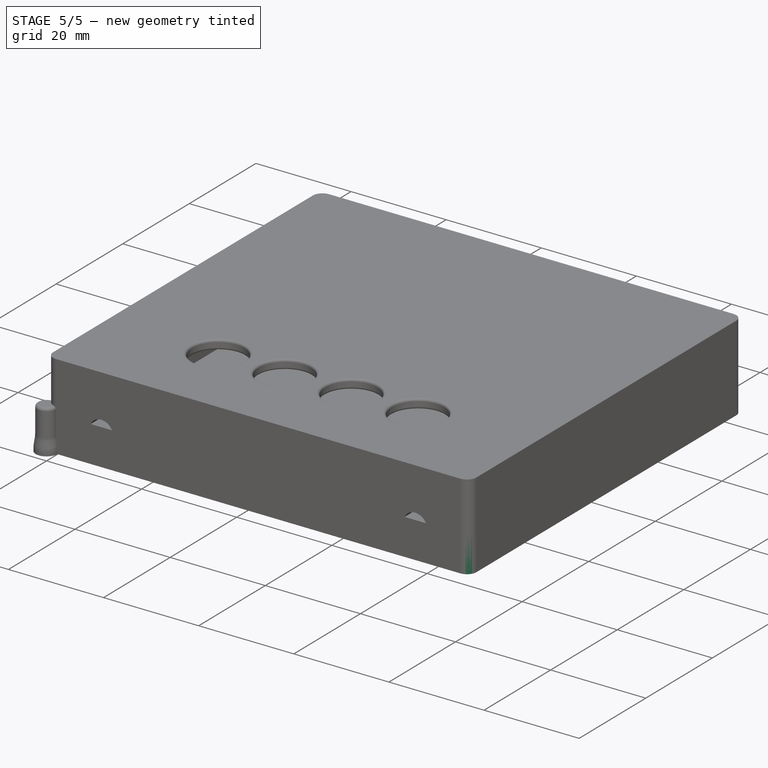
[diagram: stage 5 of 5 — iso view after this stage's code; geometry added in this stage tinted green]
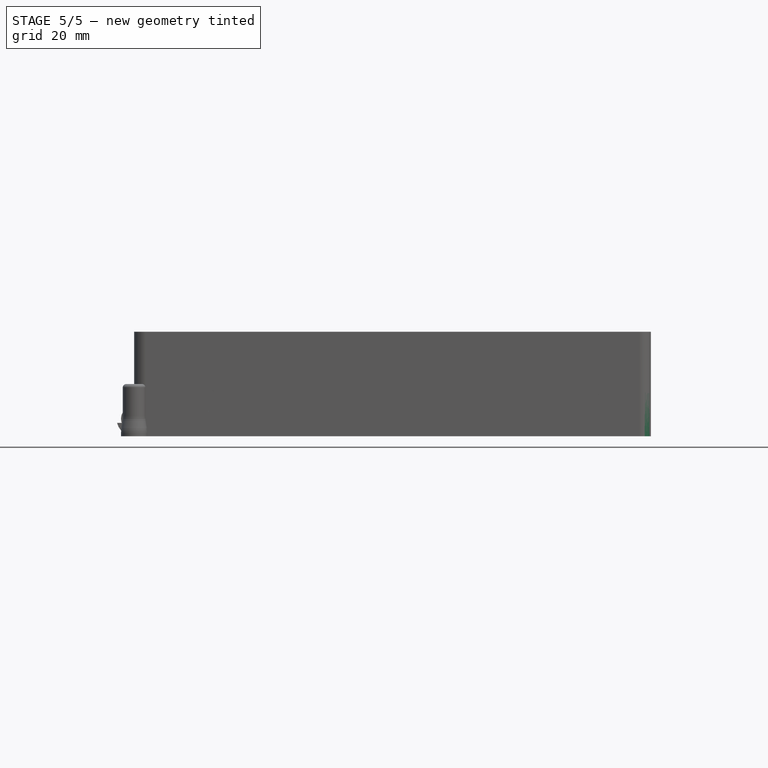
[diagram: stage 5 of 5 — front view after this stage's code; geometry added in this stage tinted green]
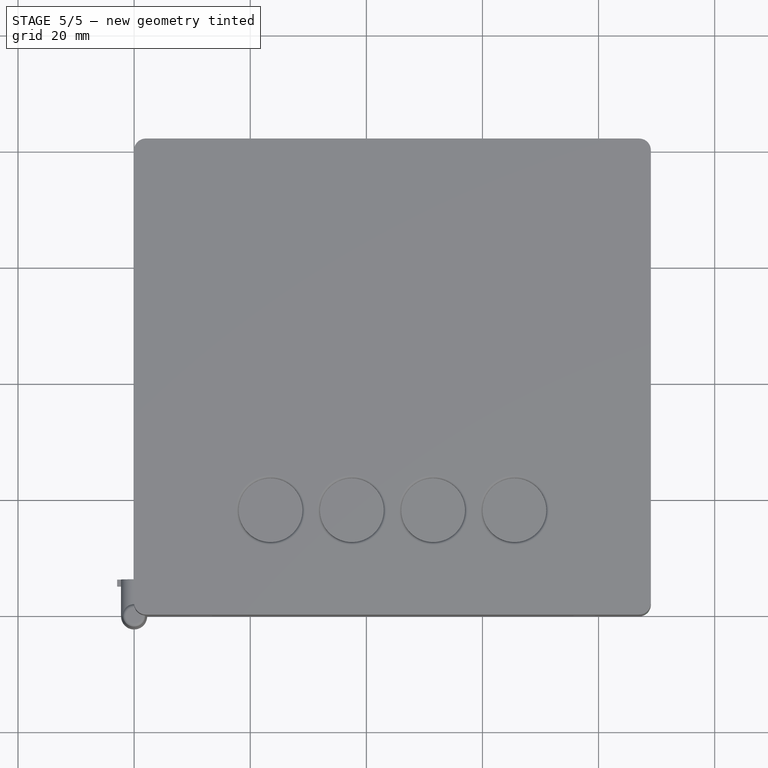
[diagram: stage 5 of 5 — top view after this stage's code; geometry added in this stage tinted green]
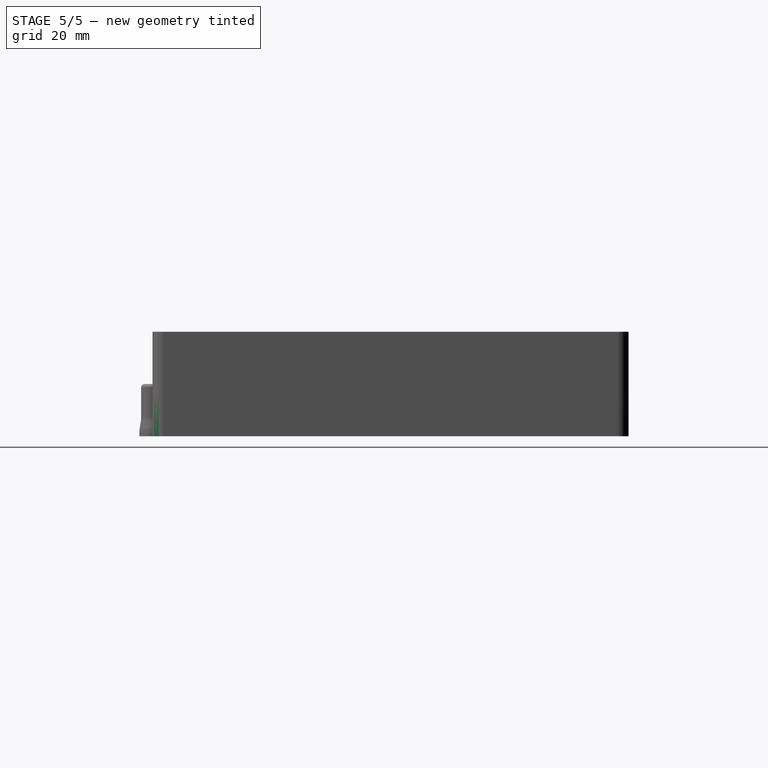
[diagram: stage 5 of 5 — right view after this stage's code; geometry added in this stage tinted green]
FEATURE [PartDesign::Fillet] Fillet
  Base = -> Pad003 [Edge10,Edge8,Edge6,Edge5]
  BaseFeature = -> Pad003
  Radius = 2
  Refine = true
  SupportTransform = false
  Suppressed = false
  UseAllEdges = false
FEATURE [PartDesign::Chamfer] Chamfer
  Angle = 45
  Base = -> Fillet [Edge57,Edge55,Edge56]
  BaseFeature = -> Fillet
  ChamferType = 0
  FlipDirection = false
  Refine = true
  Size = 0.3
  Size2 = 1
  SupportTransform = false
  Suppressed = false
  UseAllEdges = false
FEATURE [Sketcher::SketchObject] Sketch004
  ArcFitTolerance = 1e-06
  AttachmentSupport = -> [Chamfer]
  ExternalGeometry = -> [Chamfer]
  FullyConstrained = true
  MakeInternals = false
  MapMode = 5
  Placement = pos=(0,0,4.6) rot=(0,0,1;0rad)
  sketch-geometry (34):
    g0: LineSegment StartX=4 StartY=78 StartZ=0 EndX=4 EndY=4 EndZ=0
    g1: LineSegment StartX=85 StartY=4 StartZ=0 EndX=85 EndY=78 EndZ=0
    g2: LineSegment StartX=85 StartY=78 StartZ=0 EndX=75 EndY=78 EndZ=0
    g3: LineSegment StartX=2 StartY=80 StartZ=0 EndX=2 EndY=2 EndZ=0
    g4: LineSegment StartX=87 StartY=2 StartZ=0 EndX=87 EndY=80 EndZ=0
    g5: LineSegment StartX=87 StartY=80 StartZ=0 EndX=75 EndY=80 EndZ=0
    g6: LineSegment [constr] StartX=4 StartY=78 StartZ=0 EndX=2 EndY=80 EndZ=0
    g7: LineSegment [constr] StartX=85 StartY=78 StartZ=0 EndX=87 EndY=80 EndZ=0
    g8: LineSegment [constr] StartX=85 StartY=4 StartZ=0 EndX=87 EndY=2 EndZ=0
    g9: LineSegment StartX=14 StartY=80 StartZ=0 EndX=14 EndY=78 EndZ=0
    g10: LineSegment StartX=75 StartY=80 StartZ=0 EndX=75 EndY=78 EndZ=0
    g11: LineSegment StartX=14 StartY=78 StartZ=0 EndX=4 EndY=78 EndZ=0
    g12: LineSegment StartX=14 StartY=80 StartZ=0 EndX=2 EndY=80 EndZ=0
    g13: LineSegment StartX=37 StartY=78 StartZ=0 EndX=52 EndY=78 EndZ=0
    g14: LineSegment StartX=52 StartY=78 StartZ=0 EndX=52 EndY=80 EndZ=0
    g15: LineSegment StartX=52 StartY=80 StartZ=0 EndX=37 EndY=80 EndZ=0
    g16: LineSegment StartX=37 StartY=80 StartZ=0 EndX=37 EndY=78 EndZ=0
    g17: LineSegment [constr] StartX=14 StartY=78 StartZ=0 EndX=37 EndY=78 EndZ=0
    g18: LineSegment [constr] StartX=52 StartY=78 StartZ=0 EndX=75 EndY=78 EndZ=0
    g19: LineSegment [constr] StartX=14 StartY=80 StartZ=0 EndX=37 EndY=80 EndZ=0
    g20: LineSegment StartX=4 StartY=4 StartZ=0 EndX=7.5 EndY=4 EndZ=0
    g21: LineSegment StartX=2 StartY=2 StartZ=0 EndX=7.5 EndY=2 EndZ=0
    g22: LineSegment StartX=81.5 StartY=4 StartZ=0 EndX=85 EndY=4 EndZ=0
    g23: LineSegment StartX=81.5 StartY=2 StartZ=0 EndX=87 EndY=2 EndZ=0
    g24: LineSegment [constr] StartX=7.5 StartY=4 StartZ=0 EndX=17.5 EndY=4 EndZ=0
    g25: LineSegment [constr] StartX=7.5 StartY=2 StartZ=0 EndX=17.5 EndY=2 EndZ=0
    g26: LineSegment StartX=17.5 StartY=4 StartZ=0 EndX=71.5 EndY=4 EndZ=0
    g27: LineSegment [constr] StartX=71.5 StartY=4 StartZ=0 EndX=81.5 EndY=4 EndZ=0
    g28: LineSegment StartX=17.5 StartY=2 StartZ=0 EndX=71.5 EndY=2 EndZ=0
    g29: LineSegment [constr] StartX=71.5 StartY=2 StartZ=0 EndX=81.5 EndY=2 EndZ=0
    g30: LineSegment StartX=7.5 StartY=4 StartZ=0 EndX=7.5 EndY=2 EndZ=0
    g31: LineSegment StartX=17.5 StartY=2 StartZ=0 EndX=17.5 EndY=4 EndZ=0
    g32: LineSegment StartX=71.5 StartY=4 StartZ=0 EndX=71.5 EndY=2 EndZ=0
    g33: LineSegment StartX=81.5 StartY=2 StartZ=0 EndX=81.5 EndY=4 EndZ=0
  constraints (92):
    c: Coincident(g0,g20)
    c: Coincident(g22,g1)
    c: Coincident(g1,g2)
    c: Coincident(g11,g0)
    c: Vertical(g0)
    c: Vertical(g1)
    c: Horizontal(g2)
    c: Coincident(g0,g-3)
    c: Coincident(g22,g-4)
    c: Coincident(g3,g21)
    c: Coincident(g23,g4)
    c: Coincident(g4,g5)
    c: Coincident(g12,g3)
    c: Vertical(g3)
    c: Vertical(g4)
    c: Horizontal(g5)
    c: Coincident(g6,g0)
    c: Coincident(g6,g3)
    c: Coincident(g7,g1)
    c: Coincident(g7,g4)
    c: Coincident(g8,g22)
    c: Coincident(g8,g23)
    c: Equal(g8,g7)
    c: Equal(g7,g6)
    c: DistanceX(g6,g6) = 2
    c: DistanceY(g6,g6) = 2
    c: PointOnObject(g9,g12)
    c: PointOnObject(g9,g11)
    c: Vertical(g9)
    c: Vertical(g10)
    c: Coincident(g2,g10)
    c: PointOnObject(g11,g9)
    c: Coincident(g5,g10)
    c: PointOnObject(g12,g9)
    c: Equal(g2,g11)
    c: DistanceX(g11,g11) = 10
    c: Equal(g10,g9)
    c: Horizontal(g11)
    c: Horizontal(g12)
    c: Coincident(g13,g14)
    c: Coincident(g14,g15)
    c: Coincident(g15,g16)
    c: Coincident(g16,g13)
    c: Horizontal(g13)
    c: Horizontal(g15)
    c: Vertical(g14)
    c: Vertical(g16)
    c: Coincident(g17,g9)
    c: Coincident(g17,g13)
    c: Horizontal(g17)
    c: Coincident(g18,g13)
    c: Coincident(g18,g2)
    c: Horizontal(g18)
    c: Equal(g18,g17)
    c: Coincident(g19,g9)
    c: Coincident(g19,g15)
    c: Horizontal(g19)
    c: DistanceX(g13,g13) = 15
    c: Coincident(g20,g24)
    c: Horizontal(g20)
    c: Coincident(g21,g25)
    c: Horizontal(g21)
    c: Coincident(g27,g22)
    c: Horizontal(g22)
    c: Coincident(g29,g23)
    c: Horizontal(g23)
    c: Coincident(g24,g26)
    c: Horizontal(g24)
    c: Coincident(g25,g28)
    c: Horizontal(g25)
    c: Coincident(g26,g27)
    c: Horizontal(g26)
    c: Horizontal(g27)
    c: Coincident(g28,g29)
    c: Horizontal(g28)
    c: Horizontal(g29)
    c: Coincident(g30,g20)
    c: Coincident(g30,g21)
    c: Coincident(g31,g25)
    c: Coincident(g31,g24)
    c: Coincident(g32,g26)
    c: Coincident(g32,g28)
    c: Coincident(g33,g23)
    c: Coincident(g33,g22)
    c: Vertical(g33)
    c: Vertical(g30)
    c: Vertical(g32)
    c: Equal(g20,g22)
    c: DistanceX(g20,g20) = 3.5
    c: Vertical(g31)
    c: DistanceX(g24,g24) = 10
    c: Equal(g27,g24)
FEATURE [PartDesign::Pad] Pad004
  BaseFeature = -> Chamfer
  Direction = (0,0,1)
  Length = 3
  Length2 = 10
  Profile = -> Sketch004
  ReferenceAxis = -> Sketch004 [N_Axis]
  Refine = true
  Suppressed = false
  Type = 0
FEATURE [PartDesign::Chamfer] Chamfer001
  Angle = 45
  Base = -> Pad004 [Edge118,Edge120,Edge113,Edge80,Edge81,Edge82,Edge103,Edge122]
  BaseFeature = -> Pad004
  ChamferType = 0
  FlipDirection = false
  Refine = true
  Size = 0.707
  Size2 = 1
  SupportTransform = false
  Suppressed = false
  UseAllEdges = false
FEATURE [Sketcher::SketchObject] Sketch010
  ArcFitTolerance = 1e-06
  AttachmentSupport = -> [Chamfer001]
  ExternalGeometry = -> [Chamfer001]
  FullyConstrained = true
  MakeInternals = false
  MapMode = 5
  Placement = pos=(0,82,0) rot=(0,0.707107,0.707107;3.14159rad)
  expr: Constraints[10] = 1.5 + 17.775
  sketch-geometry (5):
    g0: LineSegment StartX=-29.275 StartY=4.6 StartZ=0 EndX=-29.275 EndY=2.6 EndZ=0
    g1: LineSegment StartX=-29.275 StartY=2.6 StartZ=0 EndX=-17.275 EndY=2.6 EndZ=0
    g2: LineSegment StartX=-17.275 StartY=2.6 StartZ=0 EndX=-17.275 EndY=4.6 EndZ=0
    g3: LineSegment StartX=-17.275 StartY=4.6 StartZ=0 EndX=-29.275 EndY=4.6 EndZ=0
    g4: GeomPoint X=-23.275 Y=2.6 Z=0
  constraints (13):
    c: Coincident(g0,g1)
    c: Coincident(g1,g2)
    c: Coincident(g2,g3)
    c: Coincident(g3,g0)
    c: Vertical(g0)
    c: Vertical(g2)
    c: Horizontal(g1)
    c: Horizontal(g3)
    c: PointOnObject(g0,g-4)
    c: Symmetric(g1,g1,g4)
    c: Distance(g4,g-3) = 19.275
    c: DistanceX(g1,g1) = 12
    c: DistanceY(g0,g0) = 2
FEATURE [PartDesign::Pocket] Pocket003
  BaseFeature = -> Chamfer001
  Direction = (0,-1,2e-16)
  Length = 2
  Length2 = 5
  Profile = -> Sketch010
  ReferenceAxis = -> Sketch010 [N_Axis]
  Refine = true
  Suppressed = false
  Type = 0
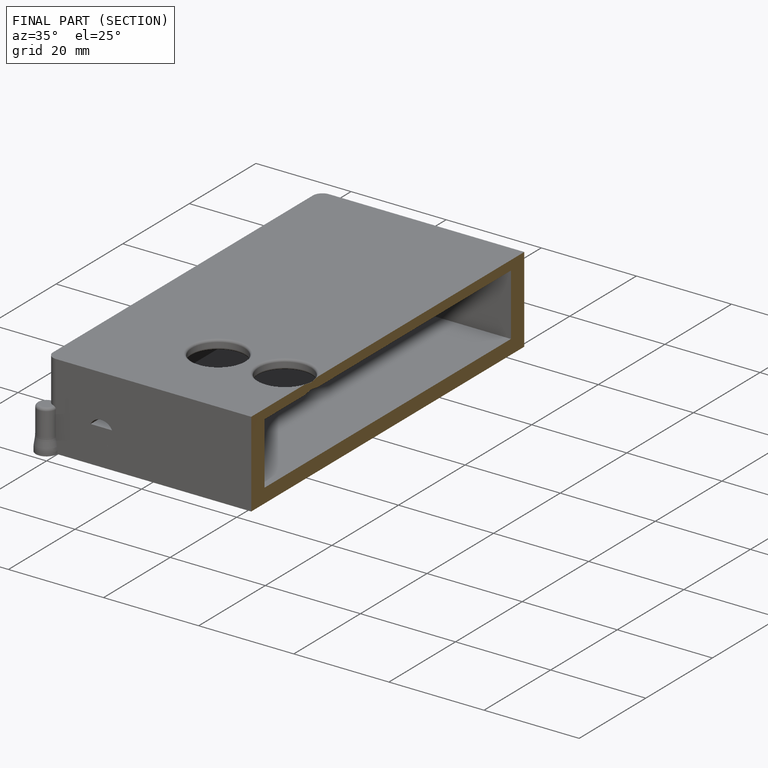
[diagram: finished part — half-section view (interior)]
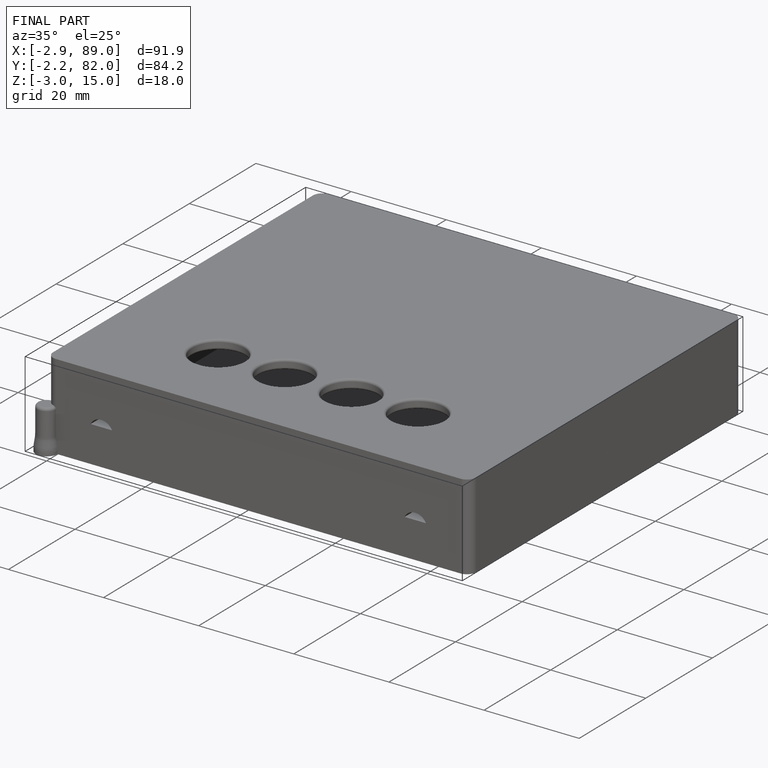
[diagram: finished part — iso view with bounding-box wireframe]
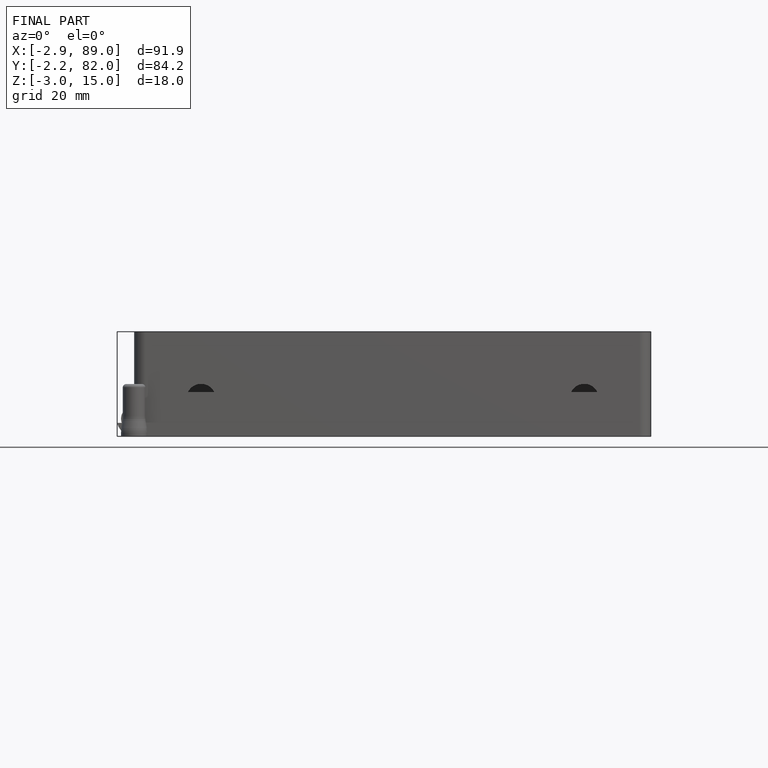
[diagram: finished part — front view with bounding-box wireframe]
